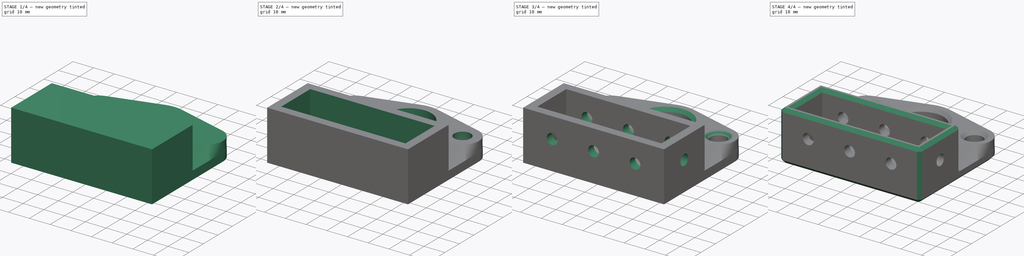
[diagram: build sequence overview — one tinted view per stage of 4, left to right]
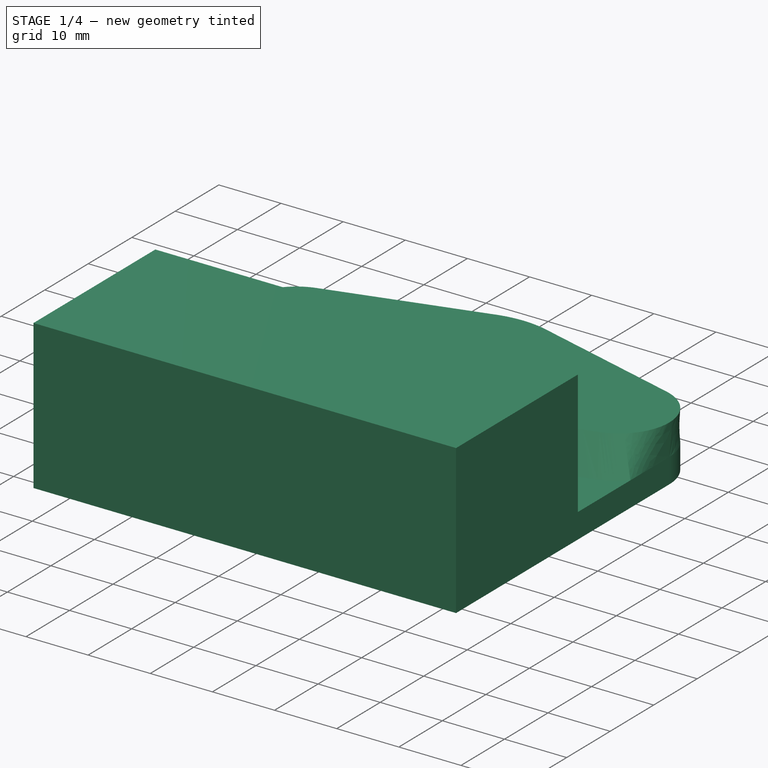
[diagram: stage 1 of 4 — iso view after this stage's code; geometry added in this stage tinted green]
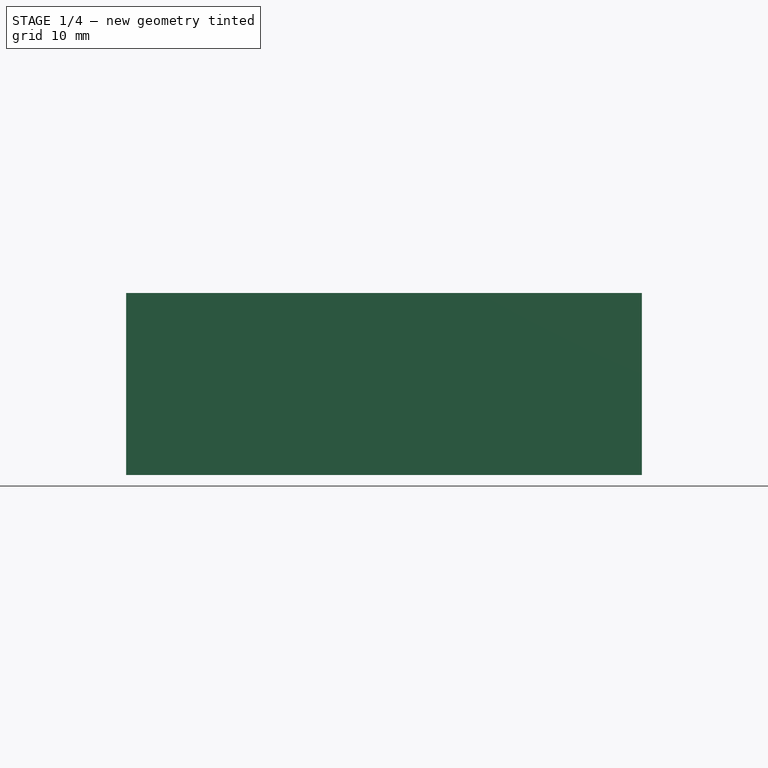
[diagram: stage 1 of 4 — front view after this stage's code; geometry added in this stage tinted green]
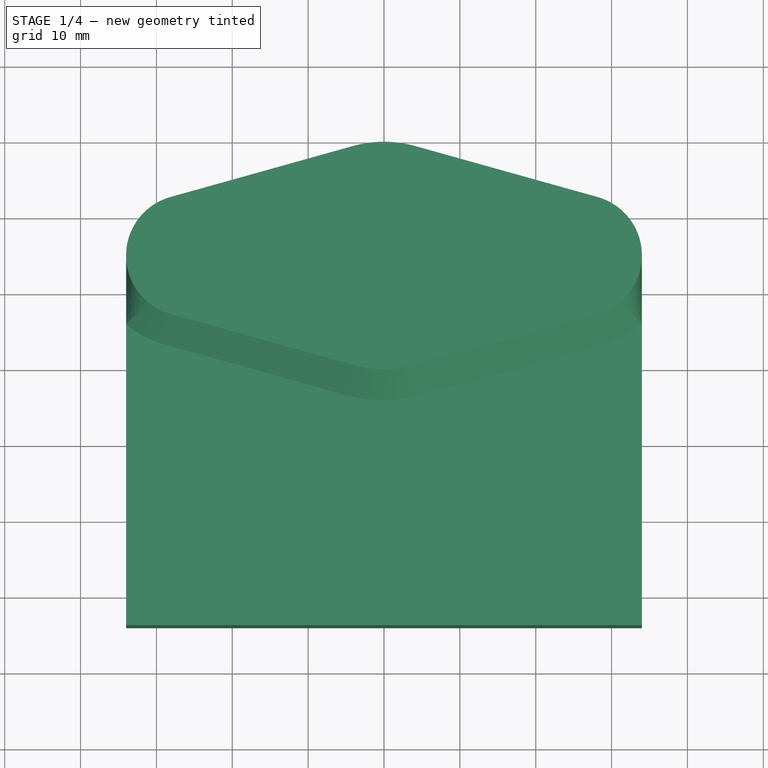
[diagram: stage 1 of 4 — top view after this stage's code; geometry added in this stage tinted green]
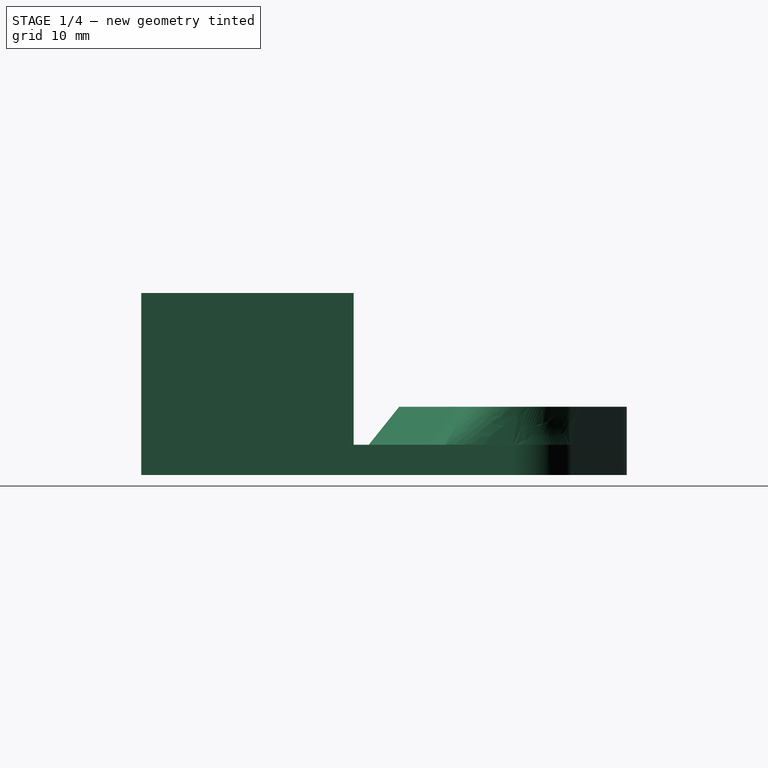
[diagram: stage 1 of 4 — right view after this stage's code; geometry added in this stage tinted green]
FCSTD DOCUMENT  (FreeCAD 0.19R24267 +99 (Git))
Label: carriage_bottom
License: All rights reserved
LicenseURL: http://en.wikipedia.org/wiki/All_rights_reserved
objects: Sketcher::SketchObject×9, PartDesign::Pocket×5, PartDesign::Chamfer×4, PartDesign::Pad×2, PartDesign::AdditiveLoft×1, PartDesign::Body×1
note: 34 computed .brp shape members not serialized (recipe doc carries the construction recipe); baked Part::Feature solids carry a one-line shape summary decoded from their .brp

FEATURE [Sketcher::SketchObject] Sketch
  FullyConstrained = true
  MapMode = 5
  Support = -> [XY_Plane]
  sketch-geometry (22):
    g0: LineSegment StartX=-30 StartY=-10 StartZ=0 EndX=30 EndY=-10 EndZ=0
    g1: LineSegment StartX=30 StartY=-10 StartZ=0 EndX=30 EndY=10 EndZ=0
    g2: LineSegment StartX=30 StartY=10 StartZ=0 EndX=-30 EndY=10 EndZ=0
    g3: LineSegment StartX=-30 StartY=10 StartZ=0 EndX=-30 EndY=-10 EndZ=0
    g4: Circle CenterX=-15.5 CenterY=19.5 CenterZ=0 NormalX=0 NormalY=0 NormalZ=1 AngleXU=0 Radius=1.5
    g5: Circle CenterX=-15.5 CenterY=50.5 CenterZ=0 NormalX=0 NormalY=0 NormalZ=1 AngleXU=0 Radius=1.5
    g6: Circle CenterX=15.5 CenterY=50.5 CenterZ=0 NormalX=0 NormalY=0 NormalZ=1 AngleXU=0 Radius=1.5
    g7: Circle CenterX=15.5 CenterY=19.5 CenterZ=0 NormalX=0 NormalY=0 NormalZ=1 AngleXU=0 Radius=1.5
    g8: GeomPoint X=-15.5 Y=18 Z=0
    g9: Circle CenterX=0 CenterY=35 CenterZ=0 NormalX=0 NormalY=0 NormalZ=1 AngleXU=0 Radius=15
    g10: Circle CenterX=26 CenterY=35 CenterZ=0 NormalX=0 NormalY=0 NormalZ=1 AngleXU=0 Radius=8
    g11: Circle CenterX=-26 CenterY=35 CenterZ=0 NormalX=0 NormalY=0 NormalZ=1 AngleXU=0 Radius=8
    g12: LineSegment StartX=-34 StartY=-14 StartZ=0 EndX=34 EndY=-14 EndZ=0
    g13: Circle CenterX=-26 CenterY=35 CenterZ=0 NormalX=0 NormalY=0 NormalZ=1 AngleXU=0 Radius=4
    g14: Circle CenterX=26 CenterY=35 CenterZ=0 NormalX=0 NormalY=0 NormalZ=1 AngleXU=0 Radius=4
    g15: LineSegment StartX=-34 StartY=-14 StartZ=0 EndX=-34 EndY=35 EndZ=0
    g16: LineSegment StartX=34 StartY=-14 StartZ=0 EndX=34 EndY=35 EndZ=0
    g17: ArcOfCircle CenterX=-26 CenterY=35 CenterZ=0 NormalX=0 NormalY=0 NormalZ=1 AngleXU=0 Radius=8 StartAngle=1.84339 EndAngle=3.14159
    g18: ArcOfCircle CenterX=26 CenterY=35 CenterZ=0 NormalX=0 NormalY=0 NormalZ=1 AngleXU=0 Radius=8 StartAngle=6.28318 EndAngle=7.58139
    g19: ArcOfCircle CenterX=0 CenterY=35 CenterZ=0 NormalX=0 NormalY=0 NormalZ=1 AngleXU=0 Radius=15 StartAngle=1.2982 EndAngle=1.84339
    g20: LineSegment StartX=4.03846 StartY=49.4461 StartZ=0 EndX=28.1538 EndY=42.7046 EndZ=0
    g21: LineSegment StartX=-4.03846 StartY=49.4461 StartZ=0 EndX=-28.1538 EndY=42.7046 EndZ=0
  constraints (56):
    c: Coincident(g0,g1)
    c: Coincident(g1,g2)
    c: Coincident(g2,g3)
    c: Coincident(g3,g0)
    c: Horizontal(g0)
    c: Horizontal(g2)
    c: Vertical(g1)
    c: Vertical(g3)
    c: DistanceY(g3,g3) = 20
    c: DistanceX(g0,g0) = 60
    c: Symmetric(g0,g1,g-1)
    c: Diameter(g4) = 3
    c: Equal(g4,g5)
    c: Equal(g5,g6)
    c: Equal(g6,g7)
    c: Vertical(g4,g5)
    c: Horizontal(g5,g6)
    c: Vertical(g6,g7)
    c: DistanceY(g4,g5) = 31
    c: DistanceX(g5,g6) = 31
    c: PointOnObject(g8,g4)
    c: Vertical(g8,g4)
    c: DistanceY(g2,g8) = 8
    c: Horizontal(g4,g7)
    c: PointOnObject(g9,g-2)
    c: Diameter(g9) = 30
    c: Symmetric(g4,g6,g9)
    c: Diameter(g11) = 16
    c: Equal(g11,g10)
    c: Horizontal(g11,g9)
    c: Symmetric(g11,g10,g-2)
    c: Horizontal(g12)
    c: DistanceY(g12,g0) = 4
    c: DistanceX(g12,g0) = 4
    c: DistanceX(g0,g12) = 4
    c: Diameter(g13) = 8
    c: Equal(g13,g14)
    c: Coincident(g11,g13)
    c: Coincident(g14,g10)
    c: Coincident(g15,g12)
    c: PointOnObject(g15,g11)
    c: Vertical(g15)
    c: Tangent(g15,g11)
    c: Coincident(g16,g12)
    c: Vertical(g16)
    c: Coincident(g17,g13)
    c: Coincident(g17,g15)
    c: Coincident(g18,g14)
    c: Coincident(g18,g16)
    c: Coincident(g19,g9)
    c: PointOnObject(g19,g9)
    c: Tangent(g21,g19) = -1.5708
    c: Tangent(g21,g17) = -1.5708
    c: Tangent(g20,g19) = 1.5708
    c: Tangent(g20,g18) = 1.5708
    c: PointOnObject(g16,g10)
FEATURE [PartDesign::Pad] Pad
  Direction = (1,1,1)
  Length = 4
  Length2 = 100
  Profile = -> Sketch
  Refine = true
  Type = 0
FEATURE [Sketcher::SketchObject] Sketch001
  FullyConstrained = true
  MapMode = 5
  Placement = pos=(0,0,9) rot=(0,0,1;0rad)
  sketch-geometry (22):
    g0: LineSegment StartX=-30 StartY=-10 StartZ=0 EndX=30 EndY=-10 EndZ=0
    g1: LineSegment StartX=30 StartY=-10 StartZ=0 EndX=30 EndY=10 EndZ=0
    g2: LineSegment StartX=30 StartY=10 StartZ=0 EndX=-30 EndY=10 EndZ=0
    g3: LineSegment StartX=-30 StartY=10 StartZ=0 EndX=-30 EndY=-10 EndZ=0
    g4: Circle CenterX=0 CenterY=35 CenterZ=0 NormalX=0 NormalY=0 NormalZ=1 AngleXU=0 Radius=15
    g5: Circle CenterX=26 CenterY=35 CenterZ=0 NormalX=0 NormalY=0 NormalZ=1 AngleXU=0 Radius=8
    g6: Circle CenterX=-26 CenterY=35 CenterZ=0 NormalX=0 NormalY=0 NormalZ=1 AngleXU=0 Radius=8
    g7: LineSegment StartX=-15.5 StartY=19.5 StartZ=0 EndX=15.5 EndY=19.5 EndZ=0
    g8: LineSegment StartX=15.5 StartY=19.5 StartZ=0 EndX=15.5 EndY=50.5 EndZ=0
    g9: LineSegment StartX=15.5 StartY=50.5 StartZ=0 EndX=-15.5 EndY=50.5 EndZ=0
    g10: LineSegment StartX=-15.5 StartY=50.5 StartZ=0 EndX=-15.5 EndY=19.5 EndZ=0
    g11: Circle CenterX=-15.5 CenterY=19.5 CenterZ=0 NormalX=0 NormalY=0 NormalZ=1 AngleXU=0 Radius=1.5
    g12: GeomPoint X=-15.5 Y=18 Z=0
    g13: GeomPoint X=-34 Y=35 Z=0
    g14: ArcOfCircle CenterX=-26 CenterY=35 CenterZ=0 NormalX=0 NormalY=0 NormalZ=1 AngleXU=0 Radius=8 StartAngle=1.84339 EndAngle=4.43979
    g15: ArcOfCircle CenterX=0 CenterY=35 CenterZ=0 NormalX=0 NormalY=0 NormalZ=1 AngleXU=0 Radius=15 StartAngle=1.2982 EndAngle=1.84339
    g16: ArcOfCircle CenterX=26 CenterY=35 CenterZ=0 NormalX=0 NormalY=0 NormalZ=1 AngleXU=0 Radius=8 StartAngle=4.98498 EndAngle=7.58139
    g17: ArcOfCircle CenterX=0 CenterY=35 CenterZ=0 NormalX=0 NormalY=0 NormalZ=1 AngleXU=0 Radius=15 StartAngle=4.43979 EndAngle=4.98498
    g18: LineSegment StartX=-28.1538 StartY=42.7046 StartZ=0 EndX=-4.03846 EndY=49.4461 EndZ=0
    g19: LineSegment StartX=4.03846 StartY=49.4461 StartZ=0 EndX=28.1538 EndY=42.7046 EndZ=0
    g20: LineSegment StartX=28.1538 StartY=27.2954 StartZ=0 EndX=4.03846 EndY=20.5539 EndZ=0
    g21: LineSegment StartX=-4.03846 StartY=20.5539 StartZ=0 EndX=-28.1538 EndY=27.2954 EndZ=0
  constraints (52):
    c: Coincident(g0,g1)
    c: Coincident(g1,g2)
    c: Coincident(g2,g3)
    c: Coincident(g3,g0)
    c: Horizontal(g0)
    c: Horizontal(g2)
    c: Vertical(g1)
    c: Vertical(g3)
    c: DistanceY(g3,g3) = 20
    c: DistanceX(g2,g2) = 60
    c: Symmetric(g0,g1,g-1)
    c: PointOnObject(g4,g-2)
    c: Coincident(g7,g8)
    c: Coincident(g8,g9)
    c: Coincident(g9,g10)
    c: Coincident(g10,g7)
    c: Horizontal(g7)
    c: Horizontal(g9)
    c: Vertical(g8)
    c: Vertical(g10)
    c: DistanceX(g9,g9) = 31
    c: Equal(g10,g7)
    c: Symmetric(g7,g8,g4)
    c: Horizontal(g4,g6)
    c: Coincident(g11,g7)
    c: Diameter(g11) = 3
    c: PointOnObject(g12,g11)
    c: Vertical(g12,g7)
    c: DistanceY(g2,g12) = 8
    c: Diameter(g4) = 30
    c: Diameter(g6) = 16
    c: Equal(g6,g5)
    c: PointOnObject(g13,g6)
    c: Horizontal(g13,g6)
    c: DistanceX(g13,g2) = 4
    c: Symmetric(g6,g5,g4)
    c: Coincident(g14,g6)
    c: PointOnObject(g14,g6)
    c: Coincident(g15,g4)
    c: PointOnObject(g15,g4)
    c: Coincident(g16,g5)
    c: PointOnObject(g16,g5)
    c: Coincident(g17,g15)
    c: PointOnObject(g17,g4)
    c: Tangent(g18,g14) = 1.5708
    c: Tangent(g18,g15) = 1.5708
    c: Tangent(g19,g15) = 1.5708
    c: Tangent(g19,g16) = 1.5708
    c: Tangent(g20,g16) = 1.5708
    c: Tangent(g20,g17) = 1.5708
    c: Tangent(g21,g17) = 1.5708
    c: Tangent(g21,g14) = 1.5708
FEATURE [Sketcher::SketchObject] Sketch002
  FullyConstrained = true
  MapMode = 5
  Placement = pos=(0,0,4) rot=(0,0,1;0rad)
  sketch-geometry (29):
    g0: LineSegment StartX=-30 StartY=-10 StartZ=0 EndX=30 EndY=-10 EndZ=0
    g1: LineSegment StartX=30 StartY=-10 StartZ=0 EndX=30 EndY=10 EndZ=0
    g2: LineSegment StartX=30 StartY=10 StartZ=0 EndX=-30 EndY=10 EndZ=0
    g3: LineSegment StartX=-30 StartY=10 StartZ=0 EndX=-30 EndY=-10 EndZ=0
    g4: LineSegment StartX=-15.5 StartY=19.5 StartZ=0 EndX=15.5 EndY=19.5 EndZ=0
    g5: LineSegment StartX=15.5 StartY=19.5 StartZ=0 EndX=15.5 EndY=50.5 EndZ=0
    g6: LineSegment StartX=15.5 StartY=50.5 StartZ=0 EndX=-15.5 EndY=50.5 EndZ=0
    g7: LineSegment StartX=-15.5 StartY=50.5 StartZ=0 EndX=-15.5 EndY=19.5 EndZ=0
    g8: Circle CenterX=-15.5 CenterY=19.5 CenterZ=0 NormalX=0 NormalY=0 NormalZ=1 AngleXU=0 Radius=1.5
    g9: GeomPoint X=-15.5 Y=18 Z=0
    g10: Circle CenterX=0 CenterY=35 CenterZ=0 NormalX=0 NormalY=0 NormalZ=1 AngleXU=0 Radius=19
    g11: Circle CenterX=26 CenterY=35 CenterZ=0 NormalX=0 NormalY=0 NormalZ=1 AngleXU=0 Radius=12
    g12: Circle CenterX=-26 CenterY=35 CenterZ=0 NormalX=0 NormalY=0 NormalZ=1 AngleXU=0 Radius=12
    g13: Circle CenterX=-26 CenterY=35 CenterZ=0 NormalX=0 NormalY=0 NormalZ=1 AngleXU=0 Radius=8
    g14: Circle CenterX=26 CenterY=35 CenterZ=0 NormalX=0 NormalY=0 NormalZ=1 AngleXU=0 Radius=8
    g15: GeomPoint X=-34 Y=35 Z=0
    g16: Circle CenterX=0 CenterY=35 CenterZ=0 NormalX=0 NormalY=0 NormalZ=1 AngleXU=0 Radius=15
    g17: ArcOfCircle CenterX=-26 CenterY=35 CenterZ=0 NormalX=0 NormalY=0 NormalZ=1 AngleXU=0 Radius=8 StartAngle=1.84339 EndAngle=3.14159
    g18: ArcOfCircle CenterX=0 CenterY=35 CenterZ=0 NormalX=0 NormalY=0 NormalZ=1 AngleXU=0 Radius=15 StartAngle=1.2982 EndAngle=1.84339
    g19: ArcOfCircle CenterX=26 CenterY=35 CenterZ=0 NormalX=0 NormalY=0 NormalZ=1 AngleXU=0 Radius=8 StartAngle=0 EndAngle=1.2982
    g20: ArcOfCircle CenterX=26 CenterY=35 CenterZ=0 NormalX=0 NormalY=0 NormalZ=1 AngleXU=0 Radius=12 StartAngle=4.98498 EndAngle=5.44212
    g21: ArcOfCircle CenterX=0 CenterY=35 CenterZ=0 NormalX=0 NormalY=0 NormalZ=1 AngleXU=0 Radius=19 StartAngle=4.43979 EndAngle=4.98498
    g22: ArcOfCircle CenterX=-26 CenterY=35 CenterZ=0 NormalX=0 NormalY=0 NormalZ=1 AngleXU=0 Radius=12 StartAngle=3.98266 EndAngle=4.43979
    g23: LineSegment StartX=-28.1538 StartY=42.7046 StartZ=0 EndX=-4.03846 EndY=49.4461 EndZ=0
    g24: LineSegment StartX=4.03846 StartY=49.4461 StartZ=0 EndX=28.1538 EndY=42.7046 EndZ=0
    g25: LineSegment StartX=34 StartY=35 StartZ=0 EndX=34 EndY=26.0557 EndZ=0
    g26: LineSegment StartX=29.2308 StartY=23.4431 StartZ=0 EndX=5.11538 EndY=16.7016 EndZ=0
    g27: LineSegment StartX=-5.11538 StartY=16.7016 StartZ=0 EndX=-29.2308 EndY=23.4431 EndZ=0
    g28: LineSegment StartX=-34 StartY=26.0557 StartZ=0 EndX=-34 EndY=35 EndZ=0
  constraints (68):
    c: Coincident(g0,g1)
    c: Coincident(g1,g2)
    c: Coincident(g2,g3)
    c: Coincident(g3,g0)
    c: Horizontal(g0)
    c: Horizontal(g2)
    c: Vertical(g1)
    c: Vertical(g3)
    c: DistanceY(g3,g3) = 20
    c: DistanceX(g0,g0) = 60
    c: Symmetric(g0,g1,g-1)
    c: Coincident(g4,g5)
    c: Coincident(g5,g6)
    c: Coincident(g6,g7)
    c: Coincident(g7,g4)
    c: Horizontal(g4)
    c: Horizontal(g6)
    c: Vertical(g5)
    c: Vertical(g7)
    c: DistanceX(g6,g6) = 31
    c: Equal(g5,g4)
    c: Coincident(g8,g4)
    c: Diameter(g8) = 3
    c: PointOnObject(g9,g8)
    c: Vertical(g9,g4)
    c: DistanceY(g2,g9) = 8
    c: PointOnObject(g10,g-2)
    c: Diameter(g10) = 38
    c: Symmetric(g5,g4,g10)
    c: Diameter(g12) = 24
    c: Equal(g12,g11)
    c: Coincident(g13,g12)
    c: Diameter(g13) = 16
    c: Coincident(g14,g11)
    c: Equal(g13,g14)
    c: Horizontal(g12,g10)
    c: Symmetric(g12,g11,g-2)
    c: PointOnObject(g15,g13)
    c: Horizontal(g15,g12)
    c: DistanceX(g15,g2) = 4
    c: Coincident(g16,g10)
    c: Diameter(g16) = 30
    c: Coincident(g17,g12)
    c: PointOnObject(g17,g13)
    c: Coincident(g18,g10)
    c: PointOnObject(g18,g16)
    c: Coincident(g19,g11)
    c: PointOnObject(g19,g14)
    c: Coincident(g20,g19)
    c: PointOnObject(g20,g11)
    c: Coincident(g21,g18)
    c: PointOnObject(g21,g10)
    c: Coincident(g22,g17)
    c: PointOnObject(g22,g12)
    c: Coincident(g25,g20)
    c: Coincident(g28,g22)
    c: Vertical(g28)
    c: Tangent(g28,g17) = 1.5708
    c: Tangent(g23,g17) = 1.5708
    c: Tangent(g23,g18) = 1.5708
    c: Tangent(g24,g18) = 1.5708
    c: Tangent(g24,g19) = 1.5708
    c: Vertical(g25)
    c: Tangent(g25,g19) = 1.5708
    c: Tangent(g26,g20) = 1.5708
    c: Tangent(g26,g21) = 1.5708
    c: Tangent(g27,g21) = 1.5708
    c: Tangent(g27,g22) = 1.5708
FEATURE [PartDesign::AdditiveLoft] AdditiveLoft
  BaseFeature = -> Pad
  Closed = false
  Profile = -> Sketch001
  Refine = true
  Ruled = false
  Sections = -> [Sketch002]
FEATURE [Sketcher::SketchObject] Sketch003
  FullyConstrained = true
  MapMode = 5
  Support = -> [XY_Plane]
  sketch-geometry (8):
    g0: LineSegment StartX=-30 StartY=-10 StartZ=0 EndX=30 EndY=-10 EndZ=0
    g1: LineSegment StartX=30 StartY=-10 StartZ=0 EndX=30 EndY=10 EndZ=0
    g2: LineSegment StartX=30 StartY=10 StartZ=0 EndX=-30 EndY=10 EndZ=0
    g3: LineSegment StartX=-30 StartY=10 StartZ=0 EndX=-30 EndY=-10 EndZ=0
    g4: LineSegment StartX=-34 StartY=-14 StartZ=0 EndX=34 EndY=-14 EndZ=0
    g5: LineSegment StartX=34 StartY=-14 StartZ=0 EndX=34 EndY=14 EndZ=0
    g6: LineSegment StartX=34 StartY=14 StartZ=0 EndX=-34 EndY=14 EndZ=0
    g7: LineSegment StartX=-34 StartY=14 StartZ=0 EndX=-34 EndY=-14 EndZ=0
  constraints (23):
    c: Coincident(g0,g1)
    c: Coincident(g1,g2)
    c: Coincident(g2,g3)
    c: Coincident(g3,g0)
    c: Horizontal(g0)
    c: Horizontal(g2)
    c: Vertical(g1)
    c: Vertical(g3)
    c: DistanceY(g3,g3) = 20
    c: DistanceX(g0,g0) = 60
    c: Symmetric(g0,g1,g-1)
    c: Coincident(g4,g5)
    c: Coincident(g5,g6)
    c: Coincident(g6,g7)
    c: Coincident(g7,g4)
    c: Horizontal(g4)
    c: Horizontal(g6)
    c: Vertical(g5)
    c: Vertical(g7)
    c: DistanceX(g4,g0) = 4
    c: DistanceY(g4,g0) = 4
    c: DistanceX(g1,g5) = 4
    c: DistanceY(g1,g5) = 4
FEATURE [PartDesign::Pad] Pad001
  BaseFeature = -> AdditiveLoft
  Direction = (1,1,1)
  Length = 24
  Length2 = 100
  Profile = -> Sketch003
  Refine = true
  Type = 0
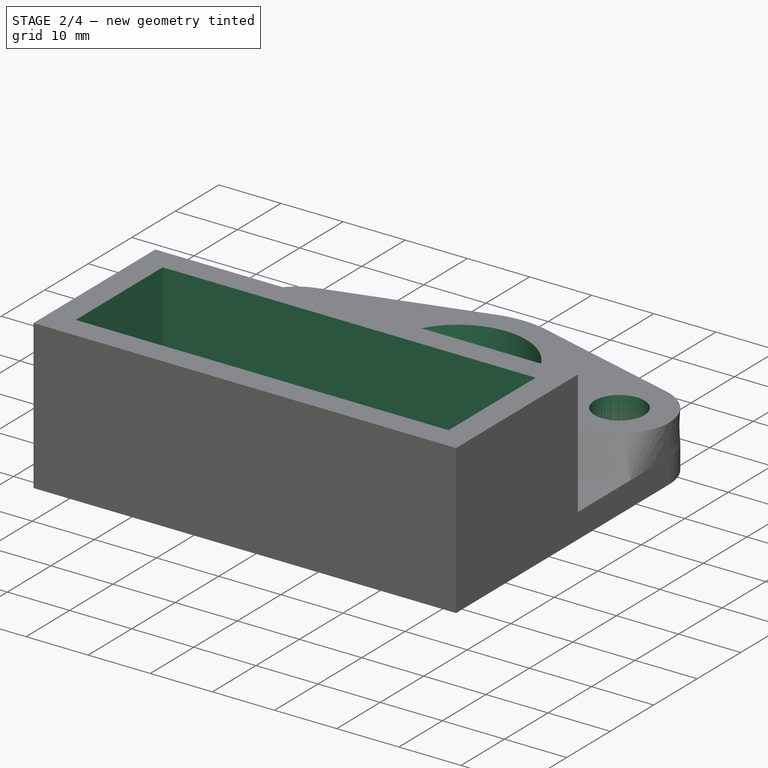
[diagram: stage 2 of 4 — iso view after this stage's code; geometry added in this stage tinted green]
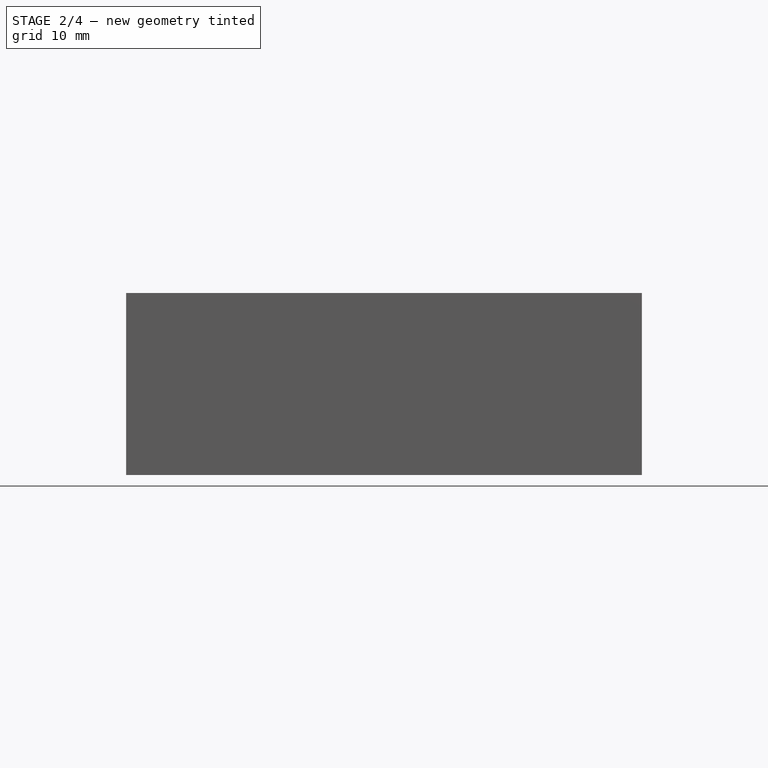
[diagram: stage 2 of 4 — front view after this stage's code; geometry added in this stage tinted green]
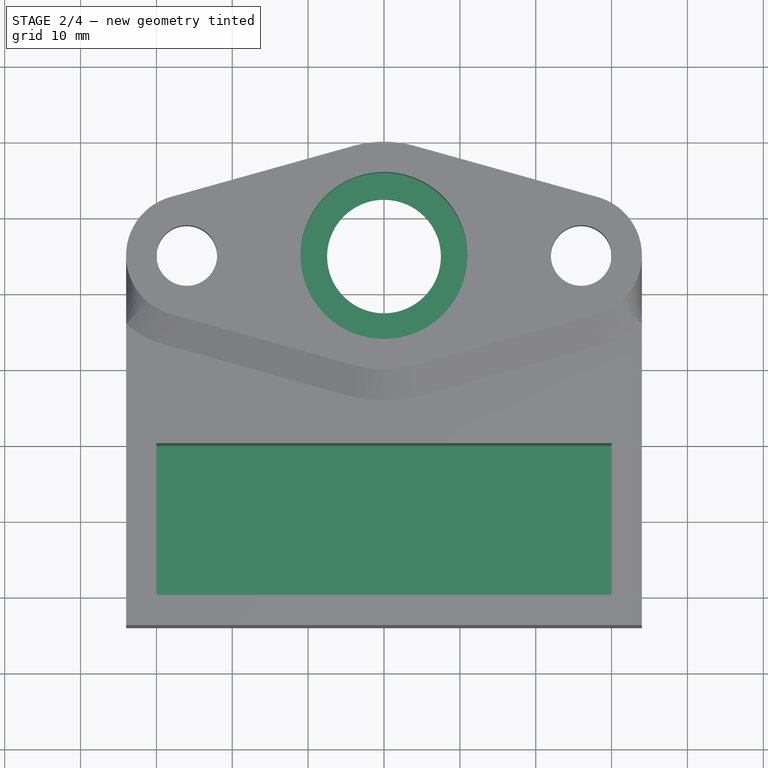
[diagram: stage 2 of 4 — top view after this stage's code; geometry added in this stage tinted green]
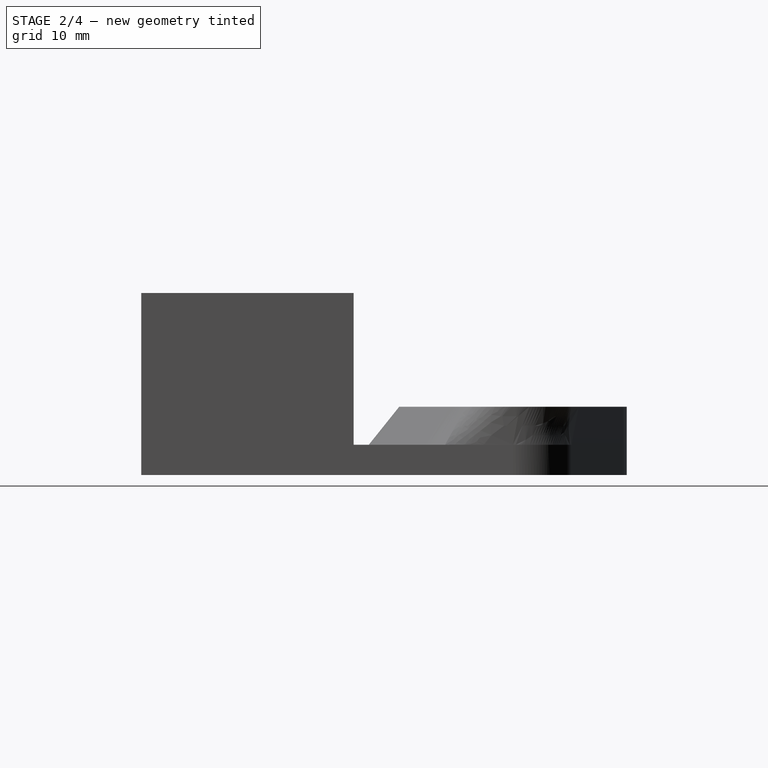
[diagram: stage 2 of 4 — right view after this stage's code; geometry added in this stage tinted green]
FEATURE [Sketcher::SketchObject] Sketch004
  FullyConstrained = true
  MapMode = 5
  Placement = pos=(0,0,4) rot=(0,0,1;0rad)
  sketch-geometry (4):
    g0: LineSegment StartX=-30 StartY=-10 StartZ=0 EndX=30 EndY=-10 EndZ=0
    g1: LineSegment StartX=30 StartY=-10 StartZ=0 EndX=30 EndY=10 EndZ=0
    g2: LineSegment StartX=30 StartY=10 StartZ=0 EndX=-30 EndY=10 EndZ=0
    g3: LineSegment StartX=-30 StartY=10 StartZ=0 EndX=-30 EndY=-10 EndZ=0
  constraints (11):
    c: Coincident(g0,g1)
    c: Coincident(g1,g2)
    c: Coincident(g2,g3)
    c: Coincident(g3,g0)
    c: Horizontal(g0)
    c: Horizontal(g2)
    c: Vertical(g1)
    c: Vertical(g3)
    c: DistanceY(g3,g3) = 20
    c: DistanceX(g0,g0) = 60
    c: Symmetric(g0,g1,g-1)
FEATURE [PartDesign::Pocket] Pocket
  BaseFeature = -> Pad001
  Length = 5
  Length2 = 100
  Profile = -> Sketch004
  Reversed = true
  Type = 1
FEATURE [Sketcher::SketchObject] Sketch005
  FullyConstrained = true
  MapMode = 5
  Support = -> [XY_Plane]
  sketch-geometry (15):
    g0: LineSegment StartX=-30 StartY=-10 StartZ=0 EndX=30 EndY=-10 EndZ=0
    g1: LineSegment StartX=30 StartY=-10 StartZ=0 EndX=30 EndY=10 EndZ=0
    g2: LineSegment StartX=30 StartY=10 StartZ=0 EndX=-30 EndY=10 EndZ=0
    g3: LineSegment StartX=-30 StartY=10 StartZ=0 EndX=-30 EndY=-10 EndZ=0
    g4: LineSegment StartX=-15.5 StartY=19.5 StartZ=0 EndX=15.5 EndY=19.5 EndZ=0
    g5: LineSegment StartX=15.5 StartY=19.5 StartZ=0 EndX=15.5 EndY=50.5 EndZ=0
    g6: LineSegment StartX=15.5 StartY=50.5 StartZ=0 EndX=-15.5 EndY=50.5 EndZ=0
    g7: LineSegment StartX=-15.5 StartY=50.5 StartZ=0 EndX=-15.5 EndY=19.5 EndZ=0
    g8: Circle CenterX=-15.5 CenterY=19.5 CenterZ=0 NormalX=0 NormalY=0 NormalZ=1 AngleXU=0 Radius=1.5
    g9: GeomPoint X=-15.5 Y=18 Z=0
    g10: Circle CenterX=0 CenterY=35 CenterZ=0 NormalX=0 NormalY=0 NormalZ=1 AngleXU=0 Radius=7.5
    g11: Circle CenterX=26 CenterY=35 CenterZ=0 NormalX=0 NormalY=0 NormalZ=1 AngleXU=0 Radius=4
    g12: Circle CenterX=-26 CenterY=35 CenterZ=0 NormalX=0 NormalY=0 NormalZ=1 AngleXU=0 Radius=4
    g13: Circle CenterX=-26 CenterY=35 CenterZ=0 NormalX=0 NormalY=0 NormalZ=1 AngleXU=0 Radius=8
    g14: GeomPoint X=-34 Y=35 Z=0
  constraints (38):
    c: Coincident(g0,g1)
    c: Coincident(g1,g2)
    c: Coincident(g2,g3)
    c: Coincident(g3,g0)
    c: Horizontal(g0)
    c: Horizontal(g2)
    c: Vertical(g1)
    c: Vertical(g3)
    c: DistanceY(g3,g3) = 20
    c: DistanceX(g0,g0) = 60
    c: Symmetric(g0,g1,g-1)
    c: Coincident(g4,g5)
    c: Coincident(g5,g6)
    c: Coincident(g6,g7)
    c: Coincident(g7,g4)
    c: Horizontal(g4)
    c: Horizontal(g6)
    c: Vertical(g5)
    c: Vertical(g7)
    c: DistanceX(g6,g6) = 31
    c: Equal(g7,g4)
    c: Coincident(g8,g4)
    c: Diameter(g8) = 3
    c: PointOnObject(g9,g8)
    c: Vertical(g4,g9)
    c: DistanceY(g2,g9) = 8
    c: PointOnObject(g10,g-2)
    c: Diameter(g10) = 15
    c: Diameter(g12) = 8
    c: Equal(g12,g11)
    c: Horizontal(g12,g10)
    c: Symmetric(g12,g11,g-2)
    c: Symmetric(g4,g5,g10)
    c: Coincident(g13,g12)
    c: Diameter(g13) = 16
    c: PointOnObject(g14,g13)
    c: Horizontal(g12,g14)
    c: DistanceX(g14,g2) = 4
FEATURE [PartDesign::Pocket] Pocket001
  BaseFeature = -> Pocket
  Length = 5
  Length2 = 100
  Profile = -> Sketch005
  Refine = true
  Reversed = true
  Type = 1
FEATURE [Sketcher::SketchObject] Sketch006
  FullyConstrained = true
  MapMode = 5
  Placement = pos=(0,0,2) rot=(0,0,1;0rad)
  sketch-geometry (11):
    g0: LineSegment StartX=-30 StartY=-10 StartZ=0 EndX=30 EndY=-10 EndZ=0
    g1: LineSegment StartX=30 StartY=-10 StartZ=0 EndX=30 EndY=10 EndZ=0
    g2: LineSegment StartX=30 StartY=10 StartZ=0 EndX=-30 EndY=10 EndZ=0
    g3: LineSegment StartX=-30 StartY=10 StartZ=0 EndX=-30 EndY=-10 EndZ=0
    g4: LineSegment StartX=-15.5 StartY=50.5 StartZ=0 EndX=15.5 EndY=50.5 EndZ=0
    g5: LineSegment StartX=15.5 StartY=50.5 StartZ=0 EndX=15.5 EndY=19.5 EndZ=0
    g6: LineSegment StartX=15.5 StartY=19.5 StartZ=0 EndX=-15.5 EndY=19.5 EndZ=0
    g7: LineSegment StartX=-15.5 StartY=19.5 StartZ=0 EndX=-15.5 EndY=50.5 EndZ=0
    g8: Circle CenterX=-15.5 CenterY=19.5 CenterZ=0 NormalX=0 NormalY=0 NormalZ=1 AngleXU=0 Radius=1.5
    g9: GeomPoint X=-15.5 Y=18 Z=0
    g10: Circle CenterX=0 CenterY=35 CenterZ=0 NormalX=0 NormalY=0 NormalZ=1 AngleXU=0 Radius=11
  constraints (29):
    c: Coincident(g0,g1)
    c: Coincident(g1,g2)
    c: Coincident(g2,g3)
    c: Coincident(g3,g0)
    c: Horizontal(g0)
    c: Horizontal(g2)
    c: Vertical(g1)
    c: Vertical(g3)
    c: Coincident(g4,g5)
    c: Coincident(g5,g6)
    c: Coincident(g6,g7)
    c: Coincident(g7,g4)
    c: Horizontal(g4)
    c: Horizontal(g6)
    c: Vertical(g5)
    c: Vertical(g7)
    c: Coincident(g8,g6)
    c: PointOnObject(g9,g8)
    c: DistanceY(g3,g3) = 20
    c: DistanceX(g0,g0) = 60
    c: DistanceX(g4,g4) = 31
    c: Equal(g7,g6)
    c: Diameter(g8) = 3
    c: Vertical(g9,g6)
    c: DistanceY(g2,g9) = 8
    c: Symmetric(g0,g1,g-1)
    c: PointOnObject(g10,g-2)
    c: Diameter(g10) = 22
    c: Symmetric(g6,g4,g10)
FEATURE [PartDesign::Pocket] Pocket002
  BaseFeature = -> Pocket001
  Length = 5
  Length2 = 100
  Profile = -> Sketch006
  Reversed = true
  Type = 1
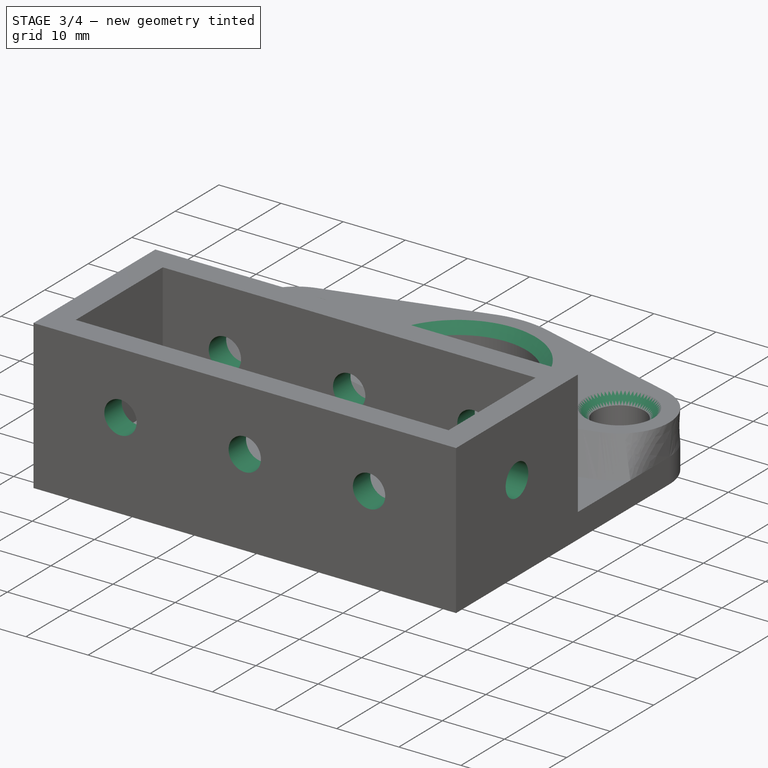
[diagram: stage 3 of 4 — iso view after this stage's code; geometry added in this stage tinted green]
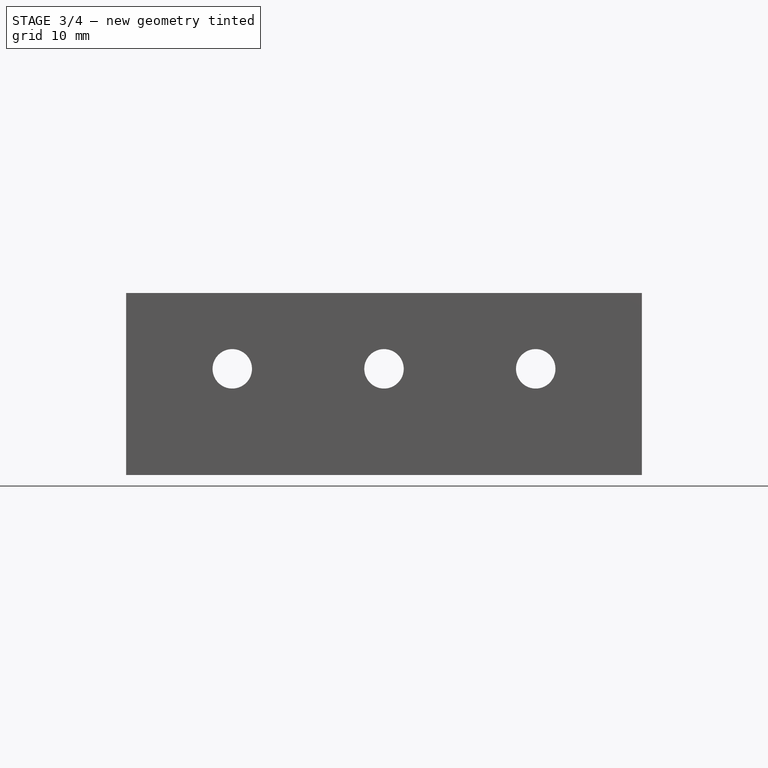
[diagram: stage 3 of 4 — front view after this stage's code; geometry added in this stage tinted green]
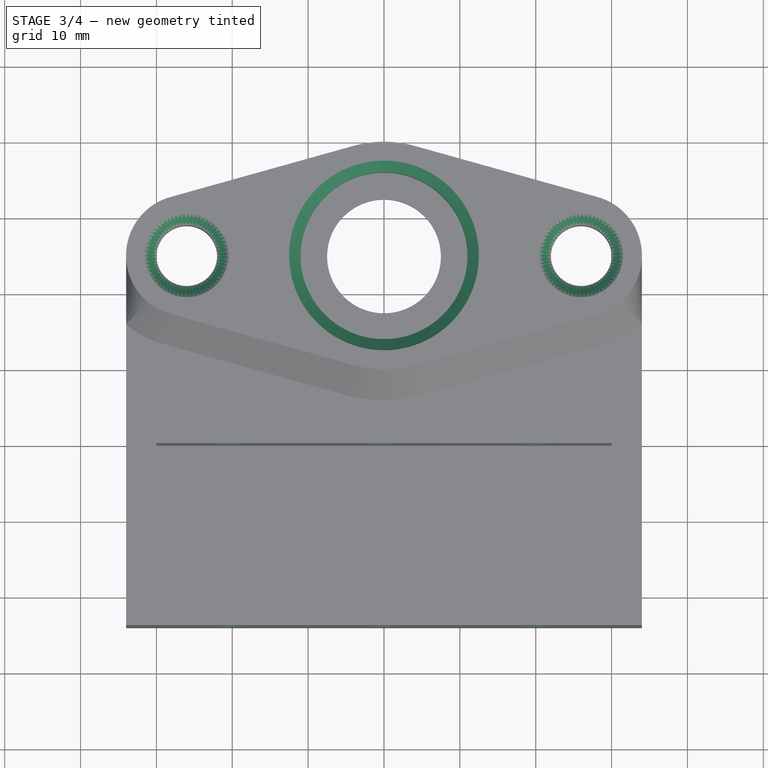
[diagram: stage 3 of 4 — top view after this stage's code; geometry added in this stage tinted green]
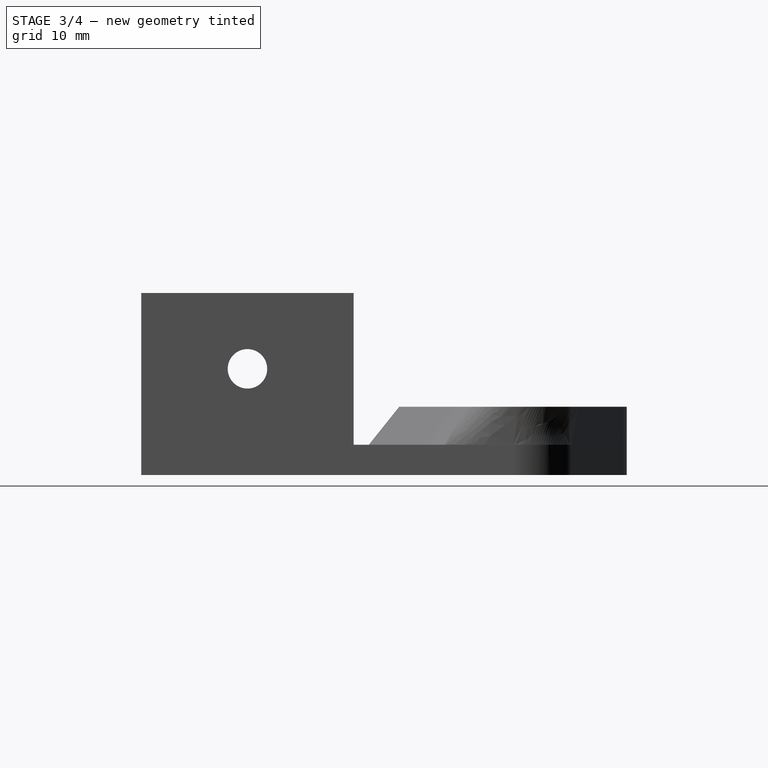
[diagram: stage 3 of 4 — right view after this stage's code; geometry added in this stage tinted green]
FEATURE [Sketcher::SketchObject] Sketch007
  FullyConstrained = true
  MapMode = 5
  Placement = pos=(0,0,0) rot=(0.57735,0.57735,0.57735;2.0944rad)
  Support = -> [YZ_Plane]
  sketch-geometry (1):
    g0: Circle CenterX=0 CenterY=14 CenterZ=0 NormalX=0 NormalY=0 NormalZ=1 AngleXU=0 Radius=2.6
  constraints (3):
    c: PointOnObject(g0,g-2)
    c: Diameter(g0) = 5.2
    c: DistanceY(g-1,g0) = 14
FEATURE [PartDesign::Pocket] Pocket003
  BaseFeature = -> Pocket002
  Length = 34
  Length2 = 34
  Profile = -> Sketch007
  Type = 4
FEATURE [Sketcher::SketchObject] Sketch008
  FullyConstrained = true
  MapMode = 5
  Placement = pos=(0,0,0) rot=(1,0,0;1.5708rad)
  Support = -> [XZ_Plane]
  sketch-geometry (3):
    g0: Circle CenterX=-20 CenterY=14 CenterZ=0 NormalX=0 NormalY=0 NormalZ=1 AngleXU=0 Radius=2.6
    g1: Circle CenterX=0 CenterY=14 CenterZ=0 NormalX=0 NormalY=0 NormalZ=1 AngleXU=0 Radius=2.6
    g2: Circle CenterX=20 CenterY=14 CenterZ=0 NormalX=0 NormalY=0 NormalZ=1 AngleXU=0 Radius=2.6
  constraints (8):
    c: PointOnObject(g1,g-2)
    c: Diameter(g0) = 5.2
    c: Equal(g0,g1)
    c: Equal(g1,g2)
    c: Horizontal(g0,g1)
    c: DistanceY(g-1,g1) = 14
    c: DistanceX(g0,g1) = 20
    c: Symmetric(g0,g2,g-2)
FEATURE [PartDesign::Pocket] Pocket004
  BaseFeature = -> Pocket003
  Length = 14
  Length2 = 14
  Profile = -> Sketch008
  Type = 4
FEATURE [PartDesign::Chamfer] Chamfer
  Angle = 45
  Base = -> Pocket004 [Edge76,Edge60,Edge56]
  BaseFeature = -> Pocket004
  ChamferType = 0
  FlipDirection = false
  Size = 1.5
  Size2 = 1
  SupportTransform = false
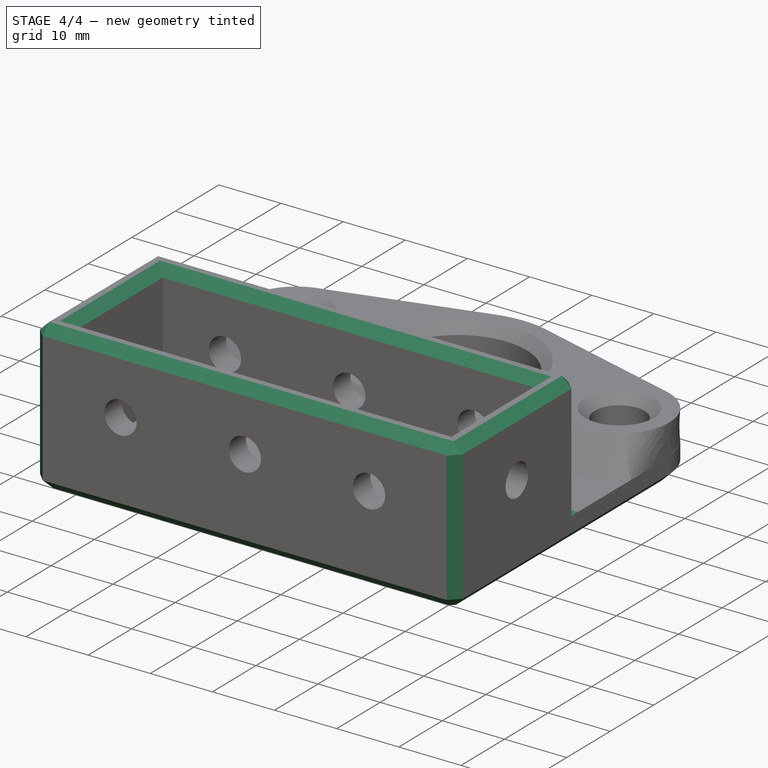
[diagram: stage 4 of 4 — iso view after this stage's code; geometry added in this stage tinted green]
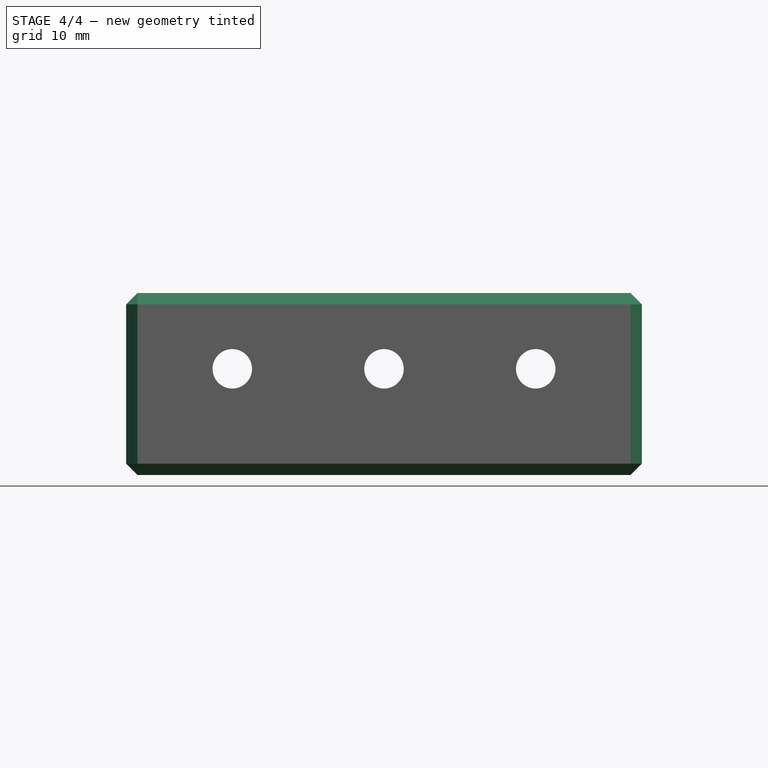
[diagram: stage 4 of 4 — front view after this stage's code; geometry added in this stage tinted green]
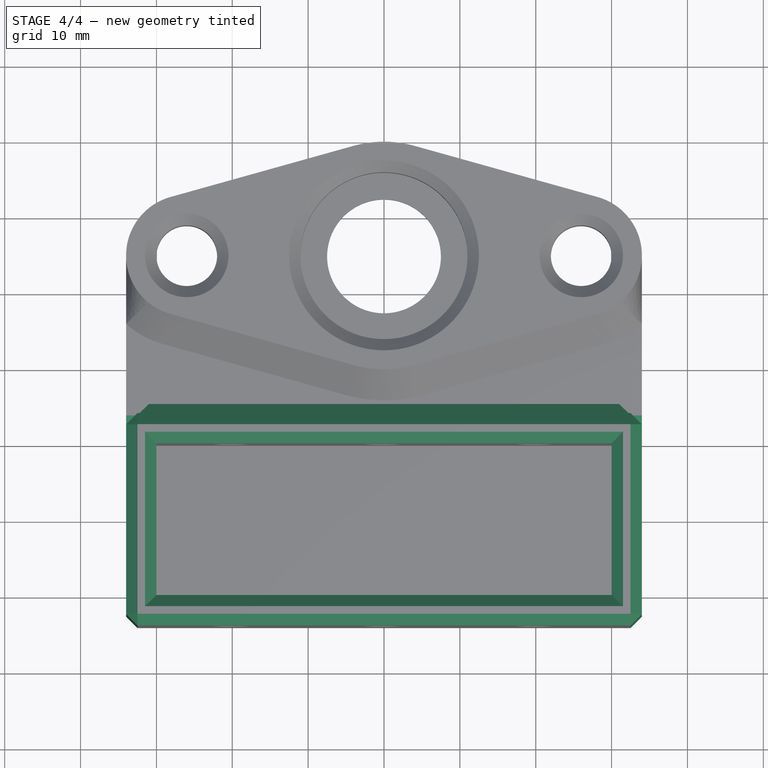
[diagram: stage 4 of 4 — top view after this stage's code; geometry added in this stage tinted green]
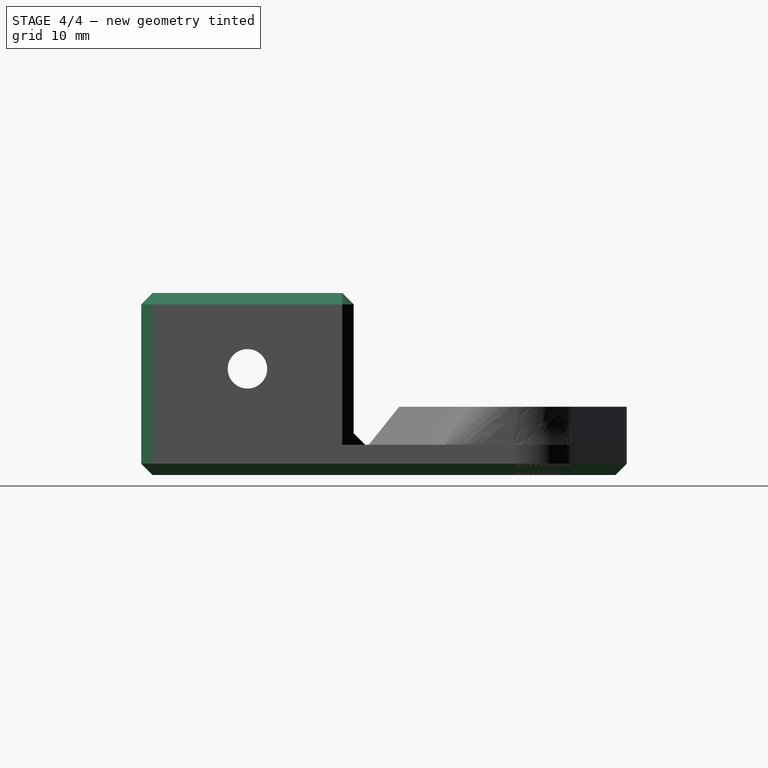
[diagram: stage 4 of 4 — right view after this stage's code; geometry added in this stage tinted green]
FEATURE [PartDesign::Chamfer] Chamfer001
  Angle = 45
  Base = -> Chamfer [Edge54,Edge67,Edge51,Edge60,Edge110,Edge61,Edge107,Edge52,Edge106,Edge108,Edge109,Edge65]
  BaseFeature = -> Chamfer
  ChamferType = 0
  FlipDirection = false
  Size = 1.5
  Size2 = 1
  SupportTransform = false
FEATURE [PartDesign::Chamfer] Chamfer002
  Angle = 45
  Base = -> Chamfer001 [Edge2,Edge4,Edge1,Edge3,Edge5,Edge7,Edge9,Edge10,Edge8,Edge6]
  BaseFeature = -> Chamfer001
  ChamferType = 0
  FlipDirection = false
  Size = 1.5
  Size2 = 1
  SupportTransform = false
FEATURE [PartDesign::Chamfer] Chamfer003
  Angle = 45
  Base = -> Chamfer002 [Edge93]
  BaseFeature = -> Chamfer002
  ChamferType = 0
  FlipDirection = false
  Size = 1.5
  Size2 = 1
  SupportTransform = false
FEATURE [PartDesign::Body] Body
  Group = -> [Sketch,Pad,Sketch001,Sketch002,AdditiveLoft,Sketch003,Pad001,Sketch004,Pocket,Sketch005,Pocket001,Sketch006,Pocket002,Sketch007,Pocket003,Sketch008,Pocket004,Chamfer,Chamfer001,Chamfer002,Chamfer003]
  Origin = -> Origin
  Tip = -> Chamfer003
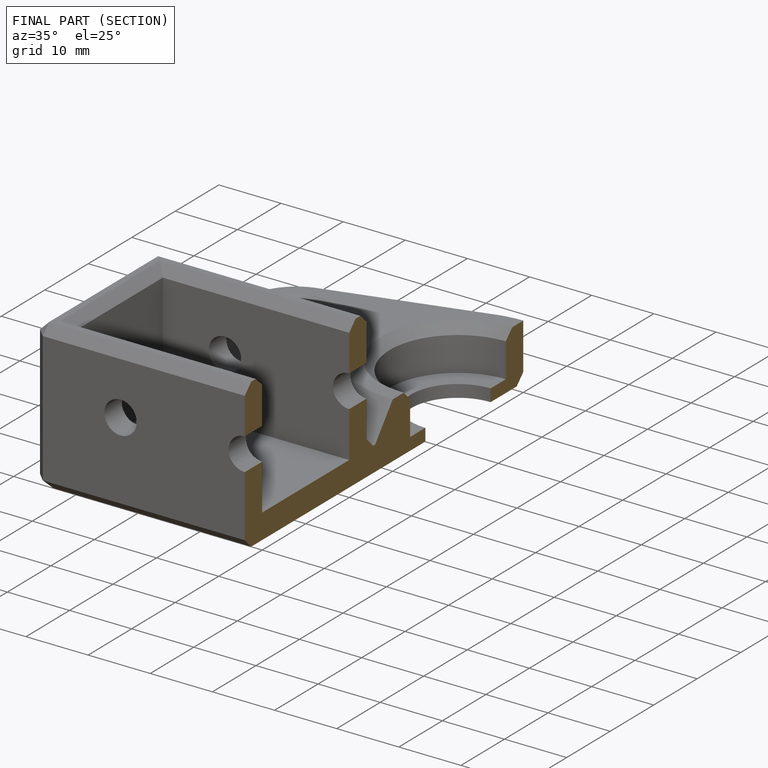
[diagram: finished part — half-section view (interior)]
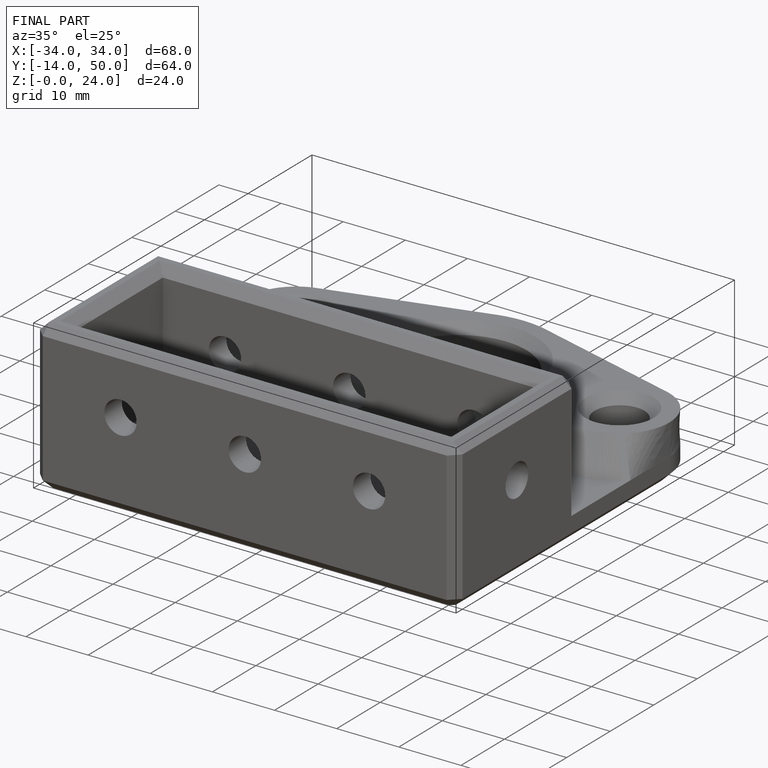
[diagram: finished part — iso view with bounding-box wireframe]
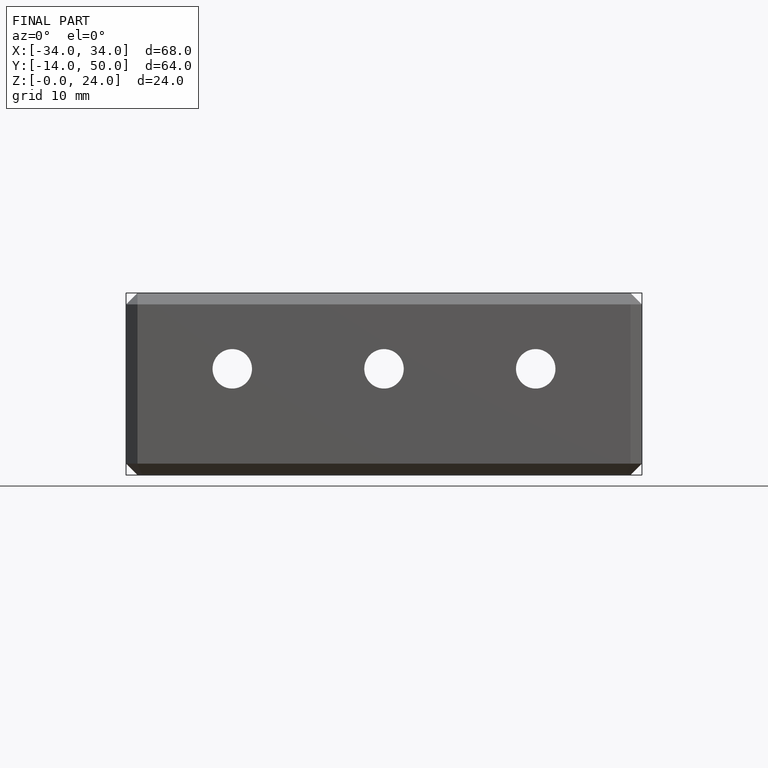
[diagram: finished part — front view with bounding-box wireframe]
